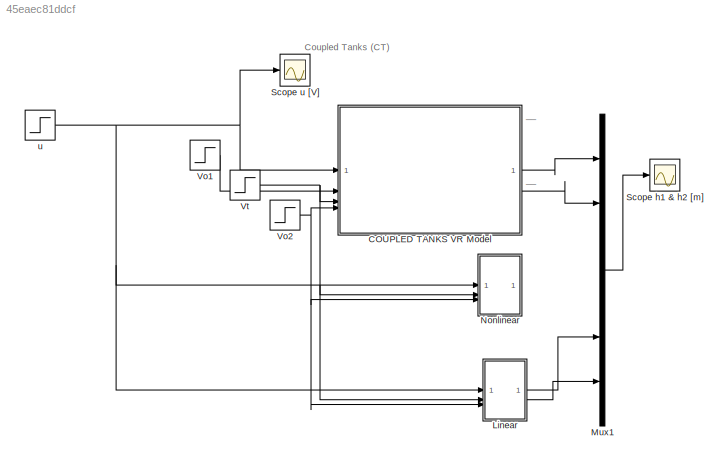
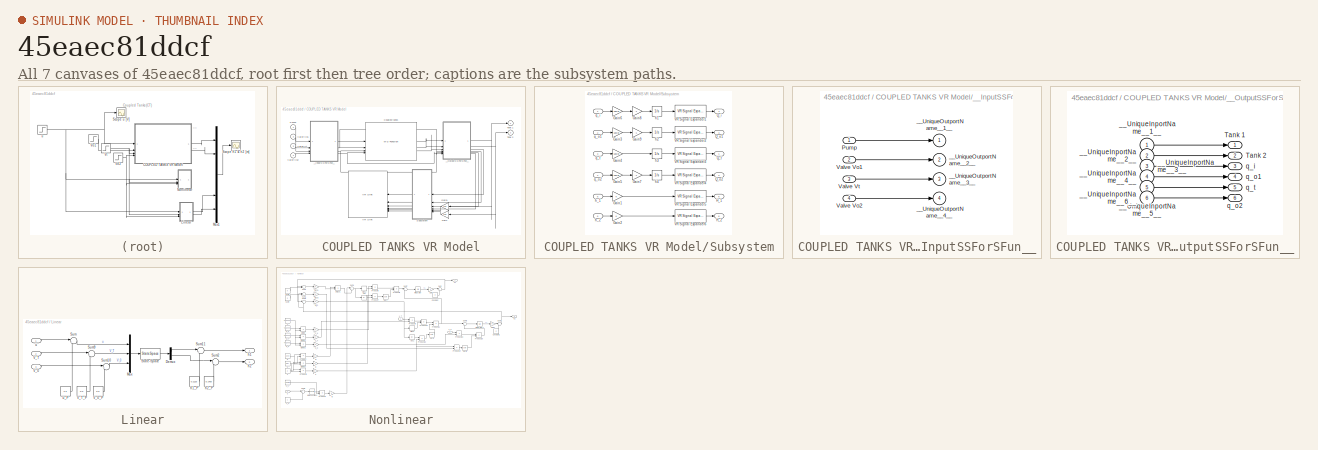
[diagram: thumbnail index - all 7 canvases of the model, root first then tree order]
MODEL mdl_45eaec81ddcf
KIND model
CONFIG AbsTol = auto
CONFIG EnableMultiTasking = on
CONFIG FixedStep = auto
CONFIG InitFcn = g = 9.81; %gravitational constant\n\n% showVR = 1; %show VR world\n% h1_init = 0; %initial condition\n% h2_init = 0; %initial condition
CONFIG MaxStep = 1e-1
CONFIG MinStep = auto
CONFIG RelTol = 1e-3
CONFIG SampleTimeConstraint = Unconstrained
CONFIG SolverName = ode45
CONFIG StartTime = 0.0
CONFIG StopTime = 200
BLOCK [SubSystem] COUPLED TANKS VR Model
BLOCK [M-S-Function] COUPLED TANKS VR Model/Coupled tanks
  FunctionName = CoupledProngTanks
  Parameters = h10 h20
BLOCK [Gain] COUPLED TANKS VR Model/Gain
  Gain = 120
BLOCK [Gain] COUPLED TANKS VR Model/Gain1
  Gain = 120
BLOCK [Inport] COUPLED TANKS VR Model/Pump
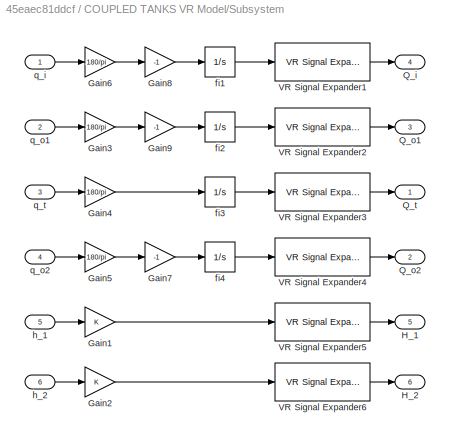
BLOCK [SubSystem] COUPLED TANKS VR Model/Subsystem
BLOCK [Gain] COUPLED TANKS VR Model/Subsystem/Gain1
BLOCK [Gain] COUPLED TANKS VR Model/Subsystem/Gain2
BLOCK [Gain] COUPLED TANKS VR Model/Subsystem/Gain3
  Gain = 180/pi
BLOCK [Gain] COUPLED TANKS VR Model/Subsystem/Gain4
  Gain = 180/pi
BLOCK [Gain] COUPLED TANKS VR Model/Subsystem/Gain5
  Gain = 180/pi
BLOCK [Gain] COUPLED TANKS VR Model/Subsystem/Gain6
  Gain = 180/pi
BLOCK [Gain] COUPLED TANKS VR Model/Subsystem/Gain7
  Gain = -1
BLOCK [Gain] COUPLED TANKS VR Model/Subsystem/Gain8
  Gain = -1
BLOCK [Gain] COUPLED TANKS VR Model/Subsystem/Gain9
  Gain = -1
BLOCK [Outport] COUPLED TANKS VR Model/Subsystem/H_1
  Port = 5
BLOCK [Outport] COUPLED TANKS VR Model/Subsystem/H_2
  Port = 6
BLOCK [Outport] COUPLED TANKS VR Model/Subsystem/Q_i
  Port = 4
BLOCK [Outport] COUPLED TANKS VR Model/Subsystem/Q_o1
  Port = 3
BLOCK [Outport] COUPLED TANKS VR Model/Subsystem/Q_o2
  Port = 2
BLOCK [Outport] COUPLED TANKS VR Model/Subsystem/Q_t
BLOCK [Reference] COUPLED TANKS VR Model/Subsystem/VR Signal Expander1  REF=vrlib/VR Signal Expander
  SourceBlock = vrlib/VR Signal Expander
  SourceType = VR Signal Expander
BLOCK [Reference] COUPLED TANKS VR Model/Subsystem/VR Signal Expander2  REF=vrlib/VR Signal Expander
  SourceBlock = vrlib/VR Signal Expander
  SourceType = VR Signal Expander
BLOCK [Reference] COUPLED TANKS VR Model/Subsystem/VR Signal Expander3  REF=vrlib/VR Signal Expander
  SourceBlock = vrlib/VR Signal Expander
  SourceType = VR Signal Expander
BLOCK [Reference] COUPLED TANKS VR Model/Subsystem/VR Signal Expander4  REF=vrlib/VR Signal Expander
  SourceBlock = vrlib/VR Signal Expander
  SourceType = VR Signal Expander
BLOCK [Reference] COUPLED TANKS VR Model/Subsystem/VR Signal Expander5  REF=vrlib/VR Signal Expander
  SourceBlock = vrlib/VR Signal Expander
  SourceType = VR Signal Expander
BLOCK [Reference] COUPLED TANKS VR Model/Subsystem/VR Signal Expander6  REF=vrlib/VR Signal Expander
  SourceBlock = vrlib/VR Signal Expander
  SourceType = VR Signal Expander
BLOCK [Integrator] COUPLED TANKS VR Model/Subsystem/fi1
BLOCK [Integrator] COUPLED TANKS VR Model/Subsystem/fi2
BLOCK [Integrator] COUPLED TANKS VR Model/Subsystem/fi3
BLOCK [Integrator] COUPLED TANKS VR Model/Subsystem/fi4
BLOCK [Inport] COUPLED TANKS VR Model/Subsystem/h_1
  Port = 5
BLOCK [Inport] COUPLED TANKS VR Model/Subsystem/h_2
  Port = 6
BLOCK [Inport] COUPLED TANKS VR Model/Subsystem/q_i
BLOCK [Inport] COUPLED TANKS VR Model/Subsystem/q_o1
  Port = 2
BLOCK [Inport] COUPLED TANKS VR Model/Subsystem/q_o2
  Port = 4
BLOCK [Inport] COUPLED TANKS VR Model/Subsystem/q_t
  Port = 3
BLOCK [Outport] COUPLED TANKS VR Model/Tank 1
  NameLocation = top
  OutDataTypeStr = double
  PortDimensions = 1
  SampleTime = [-1 0]
  SignalType = real
BLOCK [Outport] COUPLED TANKS VR Model/Tank 2
  OutDataTypeStr = double
  Port = 2
  PortDimensions = 1
  SampleTime = [-1 0]
  SignalType = real
BLOCK [Reference] COUPLED TANKS VR Model/VR Sink  REF=vrlib/VR Sink
  InstantiateOnLoad = on
  SourceBlock = vrlib/VR Sink
  SourceType = Virtual Reality Sink
BLOCK [Inport] COUPLED TANKS VR Model/Valve Vo1
  Port = 2
BLOCK [Inport] COUPLED TANKS VR Model/Valve Vo2
  Port = 4
BLOCK [Inport] COUPLED TANKS VR Model/Valve Vt
  Port = 3
BLOCK [SubSystem] COUPLED TANKS VR Model/__InputSSForSFun__
  PermitHierarchicalResolution = ExplicitOnly
BLOCK [Inport] COUPLED TANKS VR Model/__InputSSForSFun__/Pump
BLOCK [Inport] COUPLED TANKS VR Model/__InputSSForSFun__/Valve Vo1
  NameLocation = top
  Port = 2
BLOCK [Inport] COUPLED TANKS VR Model/__InputSSForSFun__/Valve Vo2
  Port = 4
BLOCK [Inport] COUPLED TANKS VR Model/__InputSSForSFun__/Valve Vt
  Port = 3
BLOCK [Outport] COUPLED TANKS VR Model/__InputSSForSFun__/__UniqueOutportName__1__
BLOCK [Outport] COUPLED TANKS VR Model/__InputSSForSFun__/__UniqueOutportName__2__
  Port = 2
BLOCK [Outport] COUPLED TANKS VR Model/__InputSSForSFun__/__UniqueOutportName__3__
  Port = 3
BLOCK [Outport] COUPLED TANKS VR Model/__InputSSForSFun__/__UniqueOutportName__4__
  Port = 4
BLOCK [SubSystem] COUPLED TANKS VR Model/__OutputSSForSFun__
  PermitHierarchicalResolution = ExplicitOnly
BLOCK [Outport] COUPLED TANKS VR Model/__OutputSSForSFun__/Tank 1
  OutDataTypeStr = double
  PortDimensions = 1
  SampleTime = [-1 0]
  SignalType = real
BLOCK [Outport] COUPLED TANKS VR Model/__OutputSSForSFun__/Tank 2
  OutDataTypeStr = double
  Port = 2
  PortDimensions = 1
  SampleTime = [-1 0]
  SignalType = real
BLOCK [Inport] COUPLED TANKS VR Model/__OutputSSForSFun__/__UniqueInportName__1__
BLOCK [Inport] COUPLED TANKS VR Model/__OutputSSForSFun__/__UniqueInportName__2__
  Port = 2
BLOCK [Inport] COUPLED TANKS VR Model/__OutputSSForSFun__/__UniqueInportName__3__
  Port = 3
BLOCK [Inport] COUPLED TANKS VR Model/__OutputSSForSFun__/__UniqueInportName__4__
  Port = 4
BLOCK [Inport] COUPLED TANKS VR Model/__OutputSSForSFun__/__UniqueInportName__5__
  Port = 5
BLOCK [Inport] COUPLED TANKS VR Model/__OutputSSForSFun__/__UniqueInportName__6__
  Port = 6
BLOCK [Outport] COUPLED TANKS VR Model/__OutputSSForSFun__/q_i
  OutDataTypeStr = double
  Port = 3
  PortDimensions = 1
  SampleTime = [0 1]
  SignalType = real
BLOCK [Outport] COUPLED TANKS VR Model/__OutputSSForSFun__/q_o1
  OutDataTypeStr = double
  Port = 4
  PortDimensions = 1
  SampleTime = [-1 0]
  SignalType = real
BLOCK [Outport] COUPLED TANKS VR Model/__OutputSSForSFun__/q_o2
  OutDataTypeStr = double
  Port = 6
  PortDimensions = 1
  SampleTime = [-1 0]
  SignalType = real
BLOCK [Outport] COUPLED TANKS VR Model/__OutputSSForSFun__/q_t
  OutDataTypeStr = double
  Port = 5
  PortDimensions = 1
  SampleTime = [-1 0]
  SignalType = real
BLOCK [SubSystem] Linear
BLOCK [Demux] Linear/Demux
  Outputs = 2
BLOCK [Mux] Linear/Mux
  DisplayOption = bar
  Inputs = 3
BLOCK [StateSpace] Linear/State-Space
  A = [-0.674424,  0.221636; 0.221636, -0.498911]
  B = [0, -0.059842,         0; 0,  0.059842, -0.149728]
  C = [1 0; 0 1]
  D = [0 0 0; 0 0 0]
  InitialCondition = 0
BLOCK [Sum] Linear/Sum
  Inputs = |+-
BLOCK [Sum] Linear/Sum10
  Inputs = |+-
BLOCK [Sum] Linear/Sum11
  Inputs = |++
BLOCK [Sum] Linear/Sum2
  Inputs = |++
BLOCK [Sum] Linear/Sum9
  Inputs = |+-
BLOCK [Inport] Linear/V_0
  Port = 3
BLOCK [Constant] Linear/V_0_P
  Value = 0.5
BLOCK [Inport] Linear/V_T
  Port = 2
BLOCK [Constant] Linear/V_T_P
  Value = 0.5
BLOCK [Outport] Linear/h1
BLOCK [Constant] Linear/h1_P
  Value = 0.2125
BLOCK [Outport] Linear/h2
  Port = 2
BLOCK [Constant] Linear/h2_P
  Value = 0.1450
BLOCK [Inport] Linear/u
  IconDisplay = Port number and signal name
BLOCK [Constant] Linear/u_P
  Value = 2.5
BLOCK [Mux] Mux1
  DisplayOption = bar
  Inputs = 6
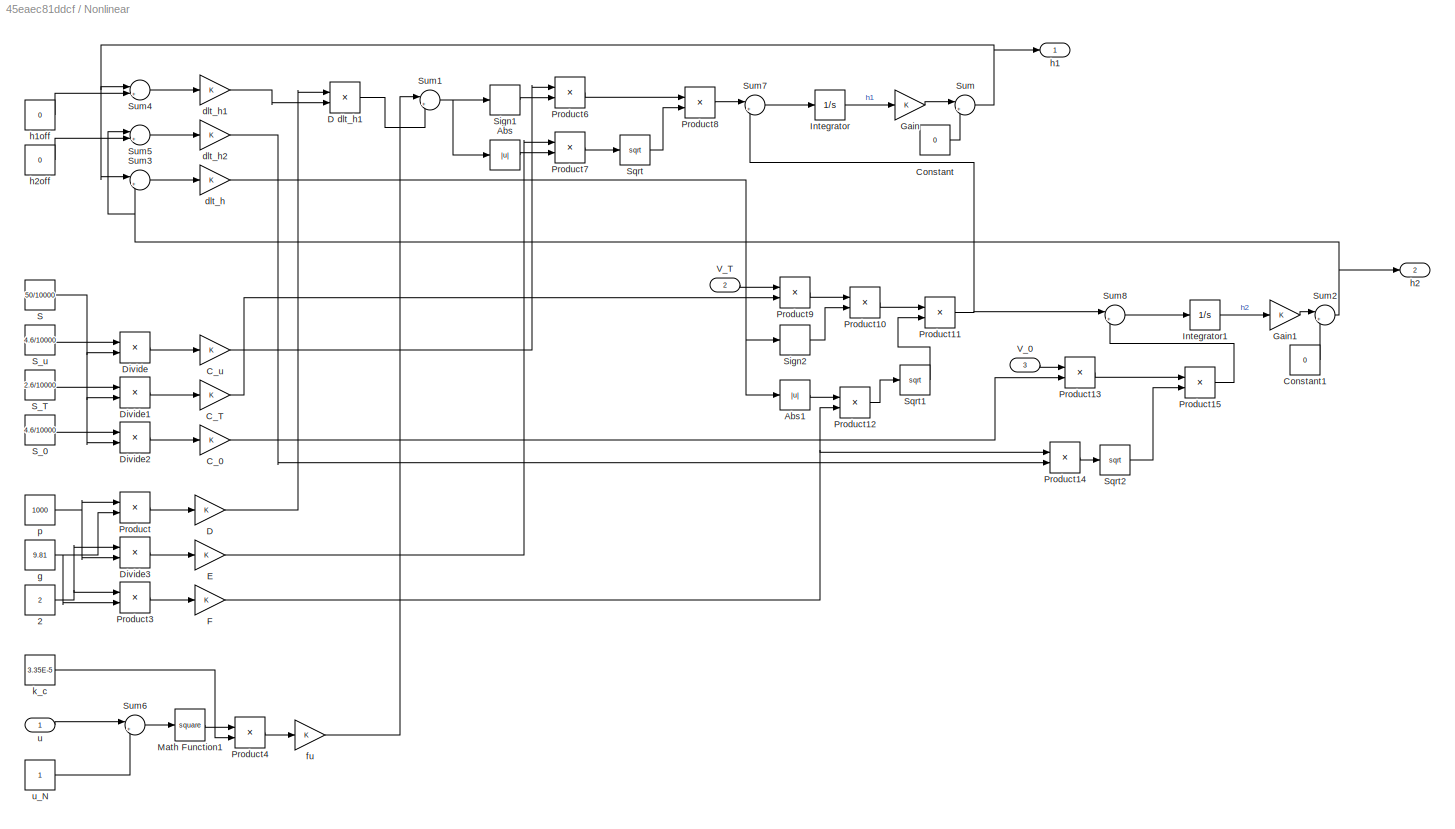
BLOCK [SubSystem] Nonlinear
BLOCK [Constant] Nonlinear/2
  Value = 2
BLOCK [Abs] Nonlinear/Abs
  SaturateOnIntegerOverflow = off
BLOCK [Abs] Nonlinear/Abs1
  SaturateOnIntegerOverflow = off
BLOCK [Gain] Nonlinear/C_0
BLOCK [Gain] Nonlinear/C_T
BLOCK [Gain] Nonlinear/C_u
BLOCK [Constant] Nonlinear/Constant
  Value = 0
BLOCK [Constant] Nonlinear/Constant1
  Value = 0
BLOCK [Gain] Nonlinear/D
BLOCK [Product] Nonlinear/D dlt_h1
BLOCK [Product] Nonlinear/Divide
  Inputs = */
BLOCK [Product] Nonlinear/Divide1
  Inputs = */
BLOCK [Product] Nonlinear/Divide2
  Inputs = */
BLOCK [Product] Nonlinear/Divide3
  Inputs = */
BLOCK [Gain] Nonlinear/E
BLOCK [Gain] Nonlinear/F
BLOCK [Gain] Nonlinear/Gain
BLOCK [Gain] Nonlinear/Gain1
BLOCK [Integrator] Nonlinear/Integrator
  InitialCondition = 0.2025
BLOCK [Integrator] Nonlinear/Integrator1
  InitialCondition = 0.1350
BLOCK [Math] Nonlinear/Math Function1
  Operator = square
BLOCK [Product] Nonlinear/Product
BLOCK [Product] Nonlinear/Product10
BLOCK [Product] Nonlinear/Product11
BLOCK [Product] Nonlinear/Product12
BLOCK [Product] Nonlinear/Product13
BLOCK [Product] Nonlinear/Product14
BLOCK [Product] Nonlinear/Product15
BLOCK [Product] Nonlinear/Product3
BLOCK [Product] Nonlinear/Product4
BLOCK [Product] Nonlinear/Product6
BLOCK [Product] Nonlinear/Product7
BLOCK [Product] Nonlinear/Product8
BLOCK [Product] Nonlinear/Product9
BLOCK [Constant] Nonlinear/S
  Value = 50/10000
BLOCK [Constant] Nonlinear/S_0
  Value = 4.6/10000
BLOCK [Constant] Nonlinear/S_T
  Value = 2.6/10000
BLOCK [Constant] Nonlinear/S_u
  Value = 4.6/10000
BLOCK [Signum] Nonlinear/Sign1
BLOCK [Signum] Nonlinear/Sign2
BLOCK [Sqrt] Nonlinear/Sqrt
BLOCK [Sqrt] Nonlinear/Sqrt1
BLOCK [Sqrt] Nonlinear/Sqrt2
BLOCK [Sum] Nonlinear/Sum
  Inputs = |++
BLOCK [Sum] Nonlinear/Sum1
  Inputs = |+-
BLOCK [Sum] Nonlinear/Sum2
  Inputs = |++
BLOCK [Sum] Nonlinear/Sum3
  Inputs = |+-
BLOCK [Sum] Nonlinear/Sum4
  Inputs = |++
BLOCK [Sum] Nonlinear/Sum5
  Inputs = |++
BLOCK [Sum] Nonlinear/Sum6
  Inputs = |+-
BLOCK [Sum] Nonlinear/Sum7
  Inputs = |+-
BLOCK [Sum] Nonlinear/Sum8
  Inputs = |+-
BLOCK [Inport] Nonlinear/V_0
  IconDisplay = Port number and signal name
  Port = 3
BLOCK [Inport] Nonlinear/V_T
  Port = 2
BLOCK [Gain] Nonlinear/dlt_h
BLOCK [Gain] Nonlinear/dlt_h1
BLOCK [Gain] Nonlinear/dlt_h2
BLOCK [Gain] Nonlinear/fu
BLOCK [Constant] Nonlinear/g
  Value = 9.81
BLOCK [Outport] Nonlinear/h1
  IconDisplay = Port number and signal name
BLOCK [Constant] Nonlinear/h1off
  Value = 0
BLOCK [Outport] Nonlinear/h2
  IconDisplay = Port number and signal name
  Port = 2
BLOCK [Constant] Nonlinear/h2off
  Value = 0
BLOCK [Constant] Nonlinear/k_c
  Value = 3.35E-5
BLOCK [Constant] Nonlinear/p
  Value = 1000
BLOCK [Inport] Nonlinear/u
  IconDisplay = Port number and signal name
BLOCK [Constant] Nonlinear/u_N
BLOCK [Scope] Scope h1 & h2 [m]
  Floating = off
  NumInputPorts = 1
  ScopeSpecificationString = Simulink.scopes.TimeScopeBlockCfg('CurrentConfiguration', extmgr.ConfigurationSet(extmgr.Configuration('Core','General UI',true),extmgr.Configuration('Core','Source UI',true),extmgr.Configuration('Sources','WiredSimulink',true,'DataLogging',true,'DataLoggingVariableName','ty','DataLoggingMaxPoints','500000','DataLoggingLimitDataPoints',true,'DataLoggingSaveFormat','Array','DataLoggingDecimation','...<+1896ch>
BLOCK [Scope] Scope u [V]
  Floating = off
  NumInputPorts = 1
  ScopeSpecificationString = Simulink.scopes.TimeScopeBlockCfg('CurrentConfiguration', extmgr.ConfigurationSet(extmgr.Configuration('Core','General UI',true),extmgr.Configuration('Core','Source UI',true),extmgr.Configuration('Sources','WiredSimulink',true,'DataLogging',true,'DataLoggingVariableName','tu','DataLoggingMaxPoints','500000','DataLoggingLimitDataPoints',true,'DataLoggingSaveFormat','Array','DataLoggingDecimation','...<+1769ch>
BLOCK [Step] Vo1
  After = 0
  SampleTime = 0
  Time = 0
BLOCK [Step] Vo2
  After = 0.3
  SampleTime = 0
  Time = 0
BLOCK [Step] Vt
  After = 0.2
  SampleTime = 0
  Time = 0
BLOCK [Step] u
  After = 2.5
  SampleTime = 0
  Time = 0
ANNOTATION (root): Coupled Tanks (CT)
ANNOTATION (root): __
LINE COUPLED TANKS VR Model/Coupled tanks:1 -> COUPLED TANKS VR Model/__OutputSSForSFun__:1
LINE COUPLED TANKS VR Model/Coupled tanks:2 -> COUPLED TANKS VR Model/__OutputSSForSFun__:2
LINE COUPLED TANKS VR Model/Coupled tanks:3 -> COUPLED TANKS VR Model/__OutputSSForSFun__:3
LINE COUPLED TANKS VR Model/Gain1:1 -> COUPLED TANKS VR Model/Subsystem:5
LINE COUPLED TANKS VR Model/Gain:1 -> COUPLED TANKS VR Model/Subsystem:6
LINE COUPLED TANKS VR Model/Pump:1 -> COUPLED TANKS VR Model/__InputSSForSFun__:1
LINE COUPLED TANKS VR Model/Subsystem/Gain1:1 -> COUPLED TANKS VR Model/Subsystem/VR Signal Expander5:1
LINE COUPLED TANKS VR Model/Subsystem/Gain2:1 -> COUPLED TANKS VR Model/Subsystem/VR Signal Expander6:1
LINE COUPLED TANKS VR Model/Subsystem/Gain3:1 -> COUPLED TANKS VR Model/Subsystem/Gain9:1
LINE COUPLED TANKS VR Model/Subsystem/Gain4:1 -> COUPLED TANKS VR Model/Subsystem/fi3:1
LINE COUPLED TANKS VR Model/Subsystem/Gain5:1 -> COUPLED TANKS VR Model/Subsystem/Gain7:1
LINE COUPLED TANKS VR Model/Subsystem/Gain6:1 -> COUPLED TANKS VR Model/Subsystem/Gain8:1
LINE COUPLED TANKS VR Model/Subsystem/Gain7:1 -> COUPLED TANKS VR Model/Subsystem/fi4:1
LINE COUPLED TANKS VR Model/Subsystem/Gain8:1 -> COUPLED TANKS VR Model/Subsystem/fi1:1
LINE COUPLED TANKS VR Model/Subsystem/Gain9:1 -> COUPLED TANKS VR Model/Subsystem/fi2:1
LINE COUPLED TANKS VR Model/Subsystem/VR Signal Expander1:1 -> COUPLED TANKS VR Model/Subsystem/Q_i:1
LINE COUPLED TANKS VR Model/Subsystem/VR Signal Expander2:1 -> COUPLED TANKS VR Model/Subsystem/Q_o1:1
LINE COUPLED TANKS VR Model/Subsystem/VR Signal Expander3:1 -> COUPLED TANKS VR Model/Subsystem/Q_t:1
LINE COUPLED TANKS VR Model/Subsystem/VR Signal Expander4:1 -> COUPLED TANKS VR Model/Subsystem/Q_o2:1
LINE COUPLED TANKS VR Model/Subsystem/VR Signal Expander5:1 -> COUPLED TANKS VR Model/Subsystem/H_1:1
LINE COUPLED TANKS VR Model/Subsystem/VR Signal Expander6:1 -> COUPLED TANKS VR Model/Subsystem/H_2:1
LINE COUPLED TANKS VR Model/Subsystem/fi1:1 -> COUPLED TANKS VR Model/Subsystem/VR Signal Expander1:1
LINE COUPLED TANKS VR Model/Subsystem/fi2:1 -> COUPLED TANKS VR Model/Subsystem/VR Signal Expander2:1
LINE COUPLED TANKS VR Model/Subsystem/fi3:1 -> COUPLED TANKS VR Model/Subsystem/VR Signal Expander3:1
LINE COUPLED TANKS VR Model/Subsystem/fi4:1 -> COUPLED TANKS VR Model/Subsystem/VR Signal Expander4:1
LINE COUPLED TANKS VR Model/Subsystem/h_1:1 -> COUPLED TANKS VR Model/Subsystem/Gain1:1
LINE COUPLED TANKS VR Model/Subsystem/h_2:1 -> COUPLED TANKS VR Model/Subsystem/Gain2:1
LINE COUPLED TANKS VR Model/Subsystem/q_i:1 -> COUPLED TANKS VR Model/Subsystem/Gain6:1
LINE COUPLED TANKS VR Model/Subsystem/q_o1:1 -> COUPLED TANKS VR Model/Subsystem/Gain3:1
LINE COUPLED TANKS VR Model/Subsystem/q_o2:1 -> COUPLED TANKS VR Model/Subsystem/Gain5:1
LINE COUPLED TANKS VR Model/Subsystem/q_t:1 -> COUPLED TANKS VR Model/Subsystem/Gain4:1
LINE COUPLED TANKS VR Model/Subsystem:1 -> COUPLED TANKS VR Model/VR Sink:1
LINE COUPLED TANKS VR Model/Subsystem:2 -> COUPLED TANKS VR Model/VR Sink:2
LINE COUPLED TANKS VR Model/Subsystem:3 -> COUPLED TANKS VR Model/VR Sink:3
LINE COUPLED TANKS VR Model/Subsystem:4 -> COUPLED TANKS VR Model/VR Sink:4
LINE COUPLED TANKS VR Model/Subsystem:5 -> COUPLED TANKS VR Model/VR Sink:5
LINE COUPLED TANKS VR Model/Subsystem:6 -> COUPLED TANKS VR Model/VR Sink:6
LINE COUPLED TANKS VR Model/Valve Vo1:1 -> COUPLED TANKS VR Model/__InputSSForSFun__:2
LINE COUPLED TANKS VR Model/Valve Vo2:1 -> COUPLED TANKS VR Model/__InputSSForSFun__:4
LINE COUPLED TANKS VR Model/Valve Vt:1 -> COUPLED TANKS VR Model/__InputSSForSFun__:3
LINE COUPLED TANKS VR Model/__InputSSForSFun__/Pump:1 -> COUPLED TANKS VR Model/__InputSSForSFun__/__UniqueOutportName__1__:1
LINE COUPLED TANKS VR Model/__InputSSForSFun__/Valve Vo1:1 -> COUPLED TANKS VR Model/__InputSSForSFun__/__UniqueOutportName__2__:1
LINE COUPLED TANKS VR Model/__InputSSForSFun__/Valve Vo2:1 -> COUPLED TANKS VR Model/__InputSSForSFun__/__UniqueOutportName__4__:1
LINE COUPLED TANKS VR Model/__InputSSForSFun__/Valve Vt:1 -> COUPLED TANKS VR Model/__InputSSForSFun__/__UniqueOutportName__3__:1
LINE COUPLED TANKS VR Model/__InputSSForSFun__:1 -> COUPLED TANKS VR Model/Coupled tanks:1
NET COUPLED TANKS VR Model/__InputSSForSFun__:2 -> COUPLED TANKS VR Model/Coupled tanks:2, COUPLED TANKS VR Model/__OutputSSForSFun__:4
NET COUPLED TANKS VR Model/__InputSSForSFun__:3 -> COUPLED TANKS VR Model/Coupled tanks:3, COUPLED TANKS VR Model/__OutputSSForSFun__:5
NET COUPLED TANKS VR Model/__InputSSForSFun__:4 -> COUPLED TANKS VR Model/Coupled tanks:4, COUPLED TANKS VR Model/__OutputSSForSFun__:6
LINE COUPLED TANKS VR Model/__OutputSSForSFun__/__UniqueInportName__1__:1 -> COUPLED TANKS VR Model/__OutputSSForSFun__/Tank 1:1
LINE COUPLED TANKS VR Model/__OutputSSForSFun__/__UniqueInportName__2__:1 -> COUPLED TANKS VR Model/__OutputSSForSFun__/Tank 2:1
LINE COUPLED TANKS VR Model/__OutputSSForSFun__/__UniqueInportName__3__:1 -> COUPLED TANKS VR Model/__OutputSSForSFun__/q_i:1
LINE COUPLED TANKS VR Model/__OutputSSForSFun__/__UniqueInportName__4__:1 -> COUPLED TANKS VR Model/__OutputSSForSFun__/q_o1:1
LINE COUPLED TANKS VR Model/__OutputSSForSFun__/__UniqueInportName__5__:1 -> COUPLED TANKS VR Model/__OutputSSForSFun__/q_t:1
LINE COUPLED TANKS VR Model/__OutputSSForSFun__/__UniqueInportName__6__:1 -> COUPLED TANKS VR Model/__OutputSSForSFun__/q_o2:1
NET COUPLED TANKS VR Model/__OutputSSForSFun__:1 -> COUPLED TANKS VR Model/Gain1:1, COUPLED TANKS VR Model/Tank 1:1
NET COUPLED TANKS VR Model/__OutputSSForSFun__:2 -> COUPLED TANKS VR Model/Gain:1, COUPLED TANKS VR Model/Tank 2:1
LINE COUPLED TANKS VR Model/__OutputSSForSFun__:3 -> COUPLED TANKS VR Model/Subsystem:1
LINE COUPLED TANKS VR Model/__OutputSSForSFun__:4 -> COUPLED TANKS VR Model/Subsystem:2
LINE COUPLED TANKS VR Model/__OutputSSForSFun__:5 -> COUPLED TANKS VR Model/Subsystem:3
LINE COUPLED TANKS VR Model/__OutputSSForSFun__:6 -> COUPLED TANKS VR Model/Subsystem:4
LINE COUPLED TANKS VR Model:1 -> Mux1:1
LINE COUPLED TANKS VR Model:2 -> Mux1:2
LINE Linear/Demux:1 -> Linear/Sum11:1
LINE Linear/Demux:2 -> Linear/Sum2:1
LINE Linear/Mux:1 -> Linear/State-Space:1
LINE Linear/State-Space:1 -> Linear/Demux:1
LINE Linear/Sum10:1 -> Linear/Mux:3
LINE Linear/Sum11:1 -> Linear/h1:1
LINE Linear/Sum2:1 -> Linear/h2:1
LINE Linear/Sum9:1 -> Linear/Mux:2
LINE Linear/Sum:1 -> Linear/Mux:1
LINE Linear/V_0:1 -> Linear/Sum10:1
LINE Linear/V_0_P:1 -> Linear/Sum10:2
LINE Linear/V_T:1 -> Linear/Sum9:1
LINE Linear/V_T_P:1 -> Linear/Sum9:2
LINE Linear/h1_P:1 -> Linear/Sum11:2
LINE Linear/h2_P:1 -> Linear/Sum2:2
LINE Linear/u:1 -> Linear/Sum:1
LINE Linear/u_P:1 -> Linear/Sum:2
LINE Linear:1 -> Mux1:5
LINE Linear:2 -> Mux1:6
LINE Mux1:1 -> Scope h1 & h2 [m]:1
NET Nonlinear/2:1 -> Nonlinear/Divide3:1, Nonlinear/Product3:1
LINE Nonlinear/Abs1:1 -> Nonlinear/Product12:1
LINE Nonlinear/Abs:1 -> Nonlinear/Product7:2
LINE Nonlinear/C_0:1 -> Nonlinear/Product13:2
LINE Nonlinear/C_T:1 -> Nonlinear/Product9:2
LINE Nonlinear/C_u:1 -> Nonlinear/Product6:1
LINE Nonlinear/Constant1:1 -> Nonlinear/Sum2:2
LINE Nonlinear/Constant:1 -> Nonlinear/Sum:2
LINE Nonlinear/D dlt_h1:1 -> Nonlinear/Sum1:2
LINE Nonlinear/D:1 -> Nonlinear/D dlt_h1:1
LINE Nonlinear/Divide1:1 -> Nonlinear/C_T:1
LINE Nonlinear/Divide2:1 -> Nonlinear/C_0:1
LINE Nonlinear/Divide3:1 -> Nonlinear/E:1
LINE Nonlinear/Divide:1 -> Nonlinear/C_u:1
LINE Nonlinear/E:1 -> Nonlinear/Product7:1
NET Nonlinear/F:1 -> Nonlinear/Product12:2, Nonlinear/Product14:1
LINE Nonlinear/Gain1:1 -> Nonlinear/Sum2:1
LINE Nonlinear/Gain:1 -> Nonlinear/Sum:1
LINE Nonlinear/Integrator1:1 -> Nonlinear/Gain1:1
LINE Nonlinear/Integrator:1 -> Nonlinear/Gain:1
LINE Nonlinear/Math Function1:1 -> Nonlinear/Product4:1
LINE Nonlinear/Product10:1 -> Nonlinear/Product11:1
NET Nonlinear/Product11:1 -> Nonlinear/Sum7:2, Nonlinear/Sum8:1
LINE Nonlinear/Product12:1 -> Nonlinear/Sqrt1:1
LINE Nonlinear/Product13:1 -> Nonlinear/Product15:1
LINE Nonlinear/Product14:1 -> Nonlinear/Sqrt2:1
LINE Nonlinear/Product15:1 -> Nonlinear/Sum8:2
LINE Nonlinear/Product3:1 -> Nonlinear/F:1
LINE Nonlinear/Product4:1 -> Nonlinear/fu:1
LINE Nonlinear/Product6:1 -> Nonlinear/Product8:1
LINE Nonlinear/Product7:1 -> Nonlinear/Sqrt:1
LINE Nonlinear/Product8:1 -> Nonlinear/Sum7:1
LINE Nonlinear/Product9:1 -> Nonlinear/Product10:1
LINE Nonlinear/Product:1 -> Nonlinear/D:1
NET Nonlinear/S:1 -> Nonlinear/Divide1:2, Nonlinear/Divide2:2, Nonlinear/Divide:2
LINE Nonlinear/S_0:1 -> Nonlinear/Divide2:1
LINE Nonlinear/S_T:1 -> Nonlinear/Divide1:1
LINE Nonlinear/S_u:1 -> Nonlinear/Divide:1
LINE Nonlinear/Sign1:1 -> Nonlinear/Product6:2
LINE Nonlinear/Sign2:1 -> Nonlinear/Product10:2
LINE Nonlinear/Sqrt1:1 -> Nonlinear/Product11:2
LINE Nonlinear/Sqrt2:1 -> Nonlinear/Product15:2
LINE Nonlinear/Sqrt:1 -> Nonlinear/Product8:2
NET Nonlinear/Sum1:1 -> Nonlinear/Abs:1, Nonlinear/Sign1:1
NET Nonlinear/Sum2:1 -> Nonlinear/Sum3:2, Nonlinear/Sum5:1, Nonlinear/h2:1
LINE Nonlinear/Sum3:1 -> Nonlinear/dlt_h:1
LINE Nonlinear/Sum4:1 -> Nonlinear/dlt_h1:1
LINE Nonlinear/Sum5:1 -> Nonlinear/dlt_h2:1
LINE Nonlinear/Sum6:1 -> Nonlinear/Math Function1:1
LINE Nonlinear/Sum7:1 -> Nonlinear/Integrator:1
LINE Nonlinear/Sum8:1 -> Nonlinear/Integrator1:1
NET Nonlinear/Sum:1 -> Nonlinear/Sum3:1, Nonlinear/Sum4:1, Nonlinear/h1:1
LINE Nonlinear/V_0:1 -> Nonlinear/Product13:1
LINE Nonlinear/V_T:1 -> Nonlinear/Product9:1
LINE Nonlinear/dlt_h1:1 -> Nonlinear/D dlt_h1:2
LINE Nonlinear/dlt_h2:1 -> Nonlinear/Product14:2
NET Nonlinear/dlt_h:1 -> Nonlinear/Abs1:1, Nonlinear/Sign2:1
LINE Nonlinear/fu:1 -> Nonlinear/Sum1:1
NET Nonlinear/g:1 -> Nonlinear/Product3:2, Nonlinear/Product:2
LINE Nonlinear/h1off:1 -> Nonlinear/Sum4:2
LINE Nonlinear/h2off:1 -> Nonlinear/Sum5:2
LINE Nonlinear/k_c:1 -> Nonlinear/Product4:2
NET Nonlinear/p:1 -> Nonlinear/Divide3:2, Nonlinear/Product:1
LINE Nonlinear/u:1 -> Nonlinear/Sum6:1
LINE Nonlinear/u_N:1 -> Nonlinear/Sum6:2
LINE Vo1:1 -> COUPLED TANKS VR Model:2
NET Vo2:1 -> COUPLED TANKS VR Model:4, Linear:3, Nonlinear:3
NET Vt:1 -> COUPLED TANKS VR Model:3, Linear:2, Nonlinear:2
NET u:1 -> COUPLED TANKS VR Model:1, Linear:1, Nonlinear:1, Scope u [V]:1
note: NET lines group one-source signal fan-out (src -> all destinations, sorted); 1:1 wires keep LINE
